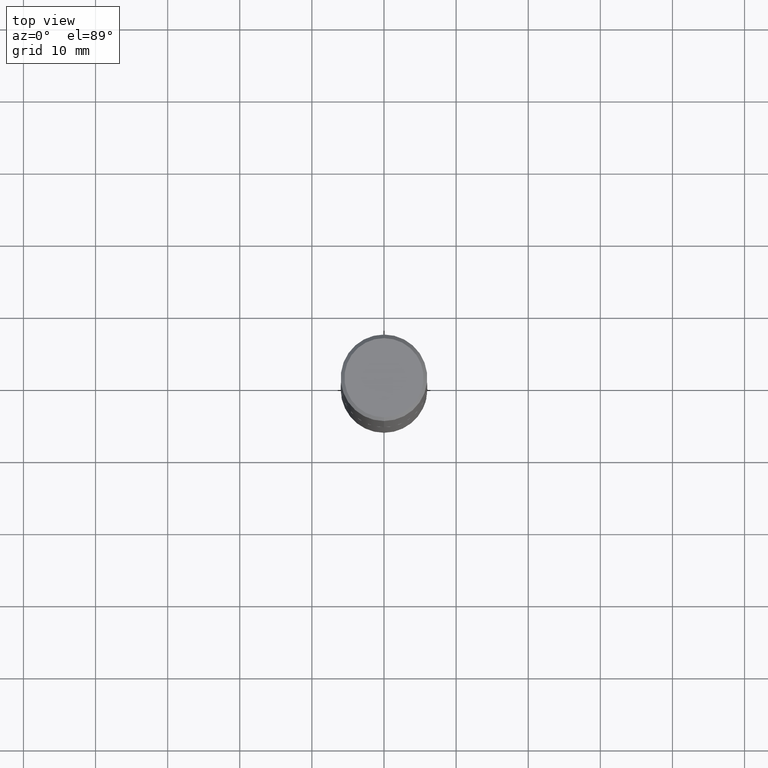
[diagram: clean part render]
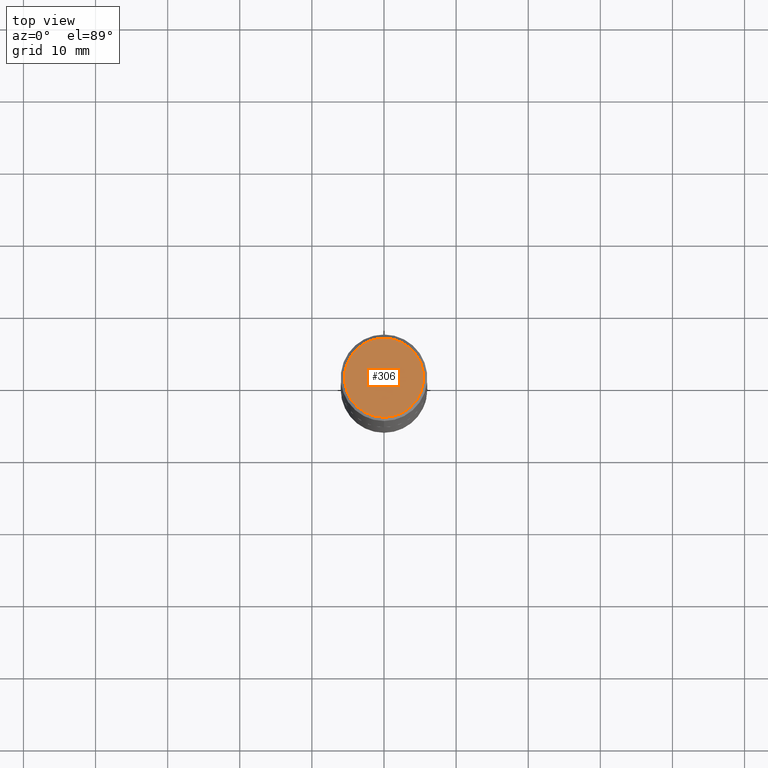
[diagram: same view with one face highlighted and labeled with its STEP entity id]
A machine part, top view. The second image highlights one B-rep face of the part: STEP entity #306.
In plain terms, the highlighted planar face has unit normal (0, -0, -1).
Its self-contained STEP definition (entity closure, byte-faithful):
#6 = CARTESIAN_POINT ( 'NONE',  ( -1.551844647095920142E-15, -0.2162000000000000033, 6.958299922090800394E-16 ) ) ;
#25 = CARTESIAN_POINT ( 'NONE',  ( 1.509716530915770718E-15, 0.2162000000000000033, -7.849205782917402841E-16 ) ) ;
#33 = AXIS2_PLACEMENT_3D ( 'NONE', #241, #301, #341 ) ;
#116 = DIRECTION ( 'NONE',  ( 6.982962677686265922E-15, 1.000000000000000000, -3.493171675597534541E-15 ) ) ;
#119 = VERTEX_POINT ( 'NONE', #6 ) ;
#157 = EDGE_LOOP ( 'NONE', ( #322, #356 ) ) ;
#169 = CIRCLE ( 'NONE', #348, 0.2162000000000000033 ) ;
#213 = CIRCLE ( 'NONE', #33, 0.2162000000000000033 ) ;
#215 = EDGE_CURVE ( 'NONE', #119, #339, #213, .T. ) ;
#241 = CARTESIAN_POINT ( 'NONE',  ( 1.451753937304763224E-45, -2.074724745775553207E-31, -5.939372405510689147E-17 ) ) ;
#242 = CARTESIAN_POINT ( 'NONE',  ( 1.451753937304763224E-45, -2.074724745775553207E-31, -5.939372405510689147E-17 ) ) ;
#246 = DIRECTION ( 'NONE',  ( -2.444288450338274722E-29, 3.493171675597534541E-15, 1.000000000000000000 ) ) ;
#247 = CARTESIAN_POINT ( 'NONE',  ( 1.579546157692633621E-15, 0.2162000000000000033, -8.146174403192938962E-16 ) ) ;
#301 = DIRECTION ( 'NONE',  ( -2.444288450338274722E-29, 3.493171675597534541E-15, 1.000000000000000000 ) ) ;
#306 = ADVANCED_FACE ( 'NONE', ( #405 ), #349, .F. ) ;
#315 = EDGE_CURVE ( 'NONE', #339, #119, #169, .T. ) ;
#322 = ORIENTED_EDGE ( 'NONE', *, *, #315, .T. ) ;
#339 = VERTEX_POINT ( 'NONE', #247 ) ;
#341 = DIRECTION ( 'NONE',  ( -6.982962677686265922E-15, -1.000000000000000000, 3.493171675597534541E-15 ) ) ;
#348 = AXIS2_PLACEMENT_3D ( 'NONE', #242, #246, #377 ) ;
#349 = PLANE ( 'NONE',  #375 ) ;
#356 = ORIENTED_EDGE ( 'NONE', *, *, #215, .T. ) ;
#375 = AXIS2_PLACEMENT_3D ( 'NONE', #25, #406, #116 ) ;
#377 = DIRECTION ( 'NONE',  ( -6.982962677686265922E-15, -1.000000000000000000, 3.493171675597534541E-15 ) ) ;
#405 = FACE_OUTER_BOUND ( 'NONE', #157, .T. ) ;
#406 = DIRECTION ( 'NONE',  ( 2.444288450338274442E-29, -3.493171675597534541E-15, -1.000000000000000000 ) ) ;